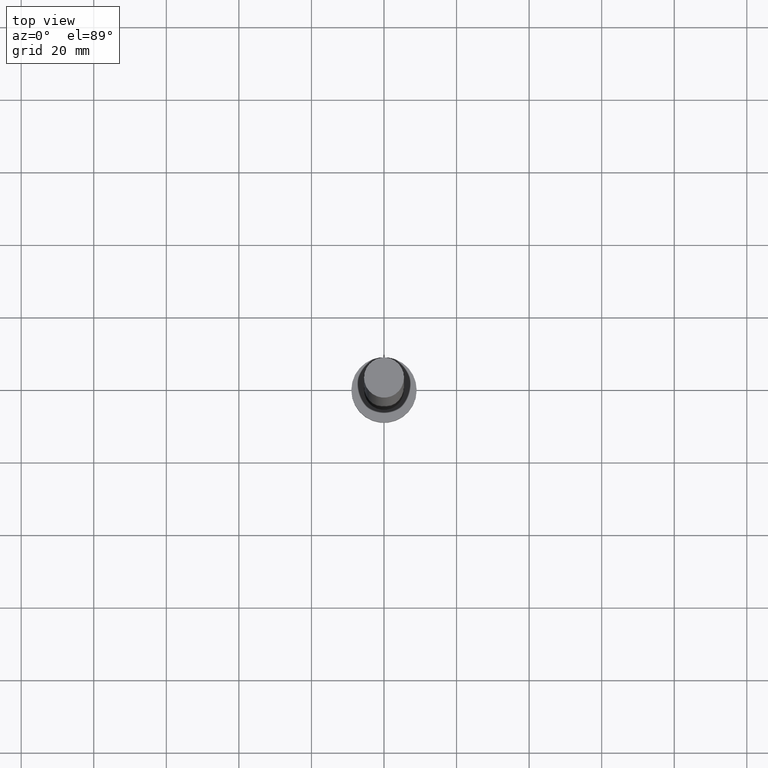
[diagram: clean part render]
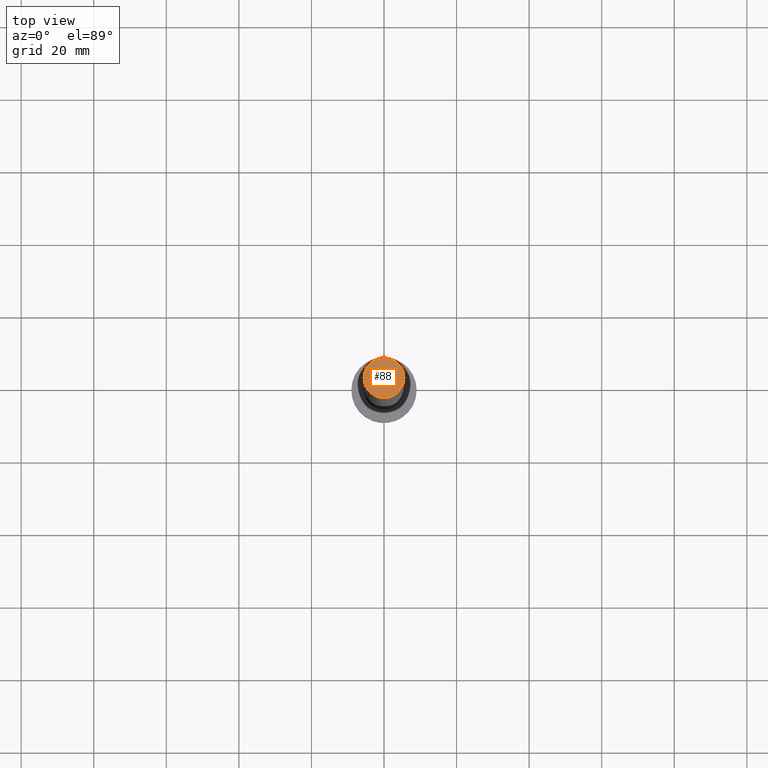
[diagram: same view with one face highlighted and labeled with its STEP entity id]
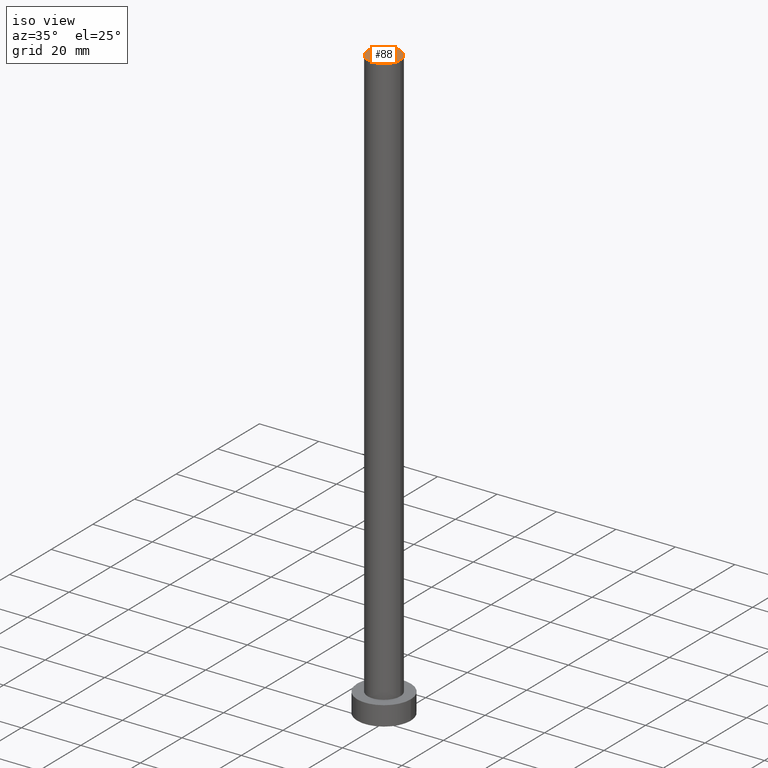
[diagram: same view with one face highlighted and labeled with its STEP entity id]
A machine part, top view. The second image highlights one B-rep face of the part: STEP entity #88.
A second angle (iso view) of the same face is appended — the face is thin or edge-on in the first view.
In plain terms, the highlighted planar face has unit normal (0, 0, 1).
Its self-contained STEP definition (entity closure, byte-faithful):
#2 = DIRECTION ( 'NONE',  ( 1.000000000000000000, 0.000000000000000000, 0.000000000000000000 ) ) ;
#3 = DIRECTION ( 'NONE',  ( 0.000000000000000000, 0.000000000000000000, 1.000000000000000000 ) ) ;
#5 = DIRECTION ( 'NONE',  ( 0.000000000000000000, 0.000000000000000000, 1.000000000000000000 ) ) ;
#6 = ORIENTED_EDGE ( 'NONE', *, *, #152, .T. ) ;
#17 = CARTESIAN_POINT ( 'NONE',  ( 0.000000000000000000, 0.000000000000000000, 200.0000000000000000 ) ) ;
#33 = FACE_OUTER_BOUND ( 'NONE', #87, .T. ) ;
#35 = AXIS2_PLACEMENT_3D ( 'NONE', #120, #84, #2 ) ;
#40 = DIRECTION ( 'NONE',  ( 1.000000000000000000, 0.000000000000000000, -0.000000000000000000 ) ) ;
#66 = VERTEX_POINT ( 'NONE', #99 ) ;
#79 = AXIS2_PLACEMENT_3D ( 'NONE', #81, #5, #40 ) ;
#81 = CARTESIAN_POINT ( 'NONE',  ( 0.000000000000000000, 0.000000000000000000, 200.0000000000000000 ) ) ;
#84 = DIRECTION ( 'NONE',  ( 0.000000000000000000, 0.000000000000000000, 1.000000000000000000 ) ) ;
#87 = EDGE_LOOP ( 'NONE', ( #202, #6 ) ) ;
#88 = ADVANCED_FACE ( 'NONE', ( #33 ), #177, .T. ) ;
#99 = CARTESIAN_POINT ( 'NONE',  ( -5.500000000000000000, 0.000000000000000000, 200.0000000000000000 ) ) ;
#117 = CIRCLE ( 'NONE', #145, 5.500000000000000000 ) ;
#120 = CARTESIAN_POINT ( 'NONE',  ( 0.000000000000000000, 0.000000000000000000, 200.0000000000000000 ) ) ;
#122 = CIRCLE ( 'NONE', #35, 5.500000000000000000 ) ;
#132 = EDGE_CURVE ( 'NONE', #66, #165, #117, .T. ) ;
#135 = DIRECTION ( 'NONE',  ( 1.000000000000000000, 0.000000000000000000, 0.000000000000000000 ) ) ;
#145 = AXIS2_PLACEMENT_3D ( 'NONE', #17, #3, #135 ) ;
#152 = EDGE_CURVE ( 'NONE', #165, #66, #122, .T. ) ;
#165 = VERTEX_POINT ( 'NONE', #214 ) ;
#177 = PLANE ( 'NONE',  #79 ) ;
#202 = ORIENTED_EDGE ( 'NONE', *, *, #132, .T. ) ;
#214 = CARTESIAN_POINT ( 'NONE',  ( 5.500000000000000000, 6.735557395310442023E-16, 200.0000000000000000 ) ) ;